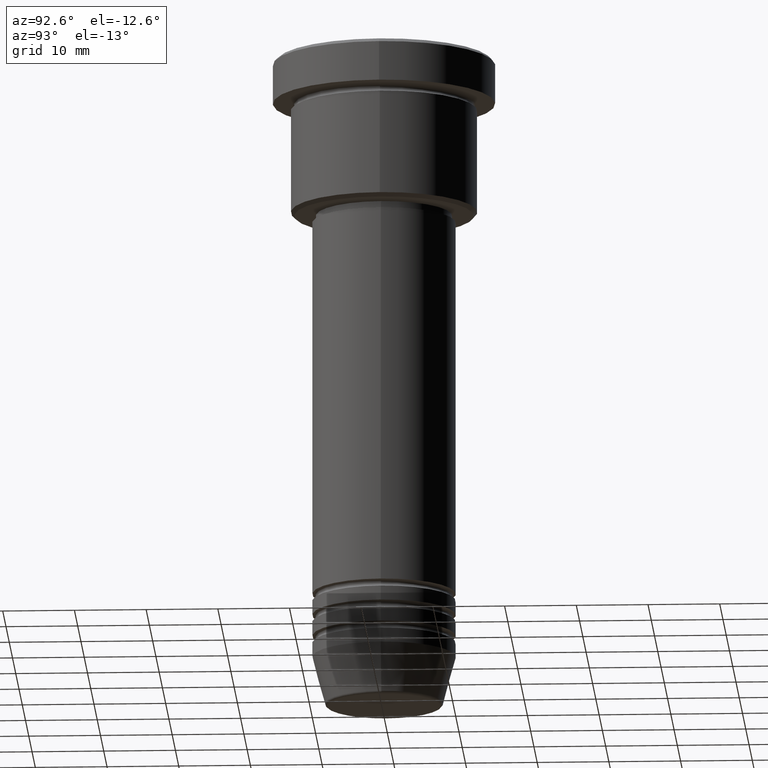
[diagram: clean part render]
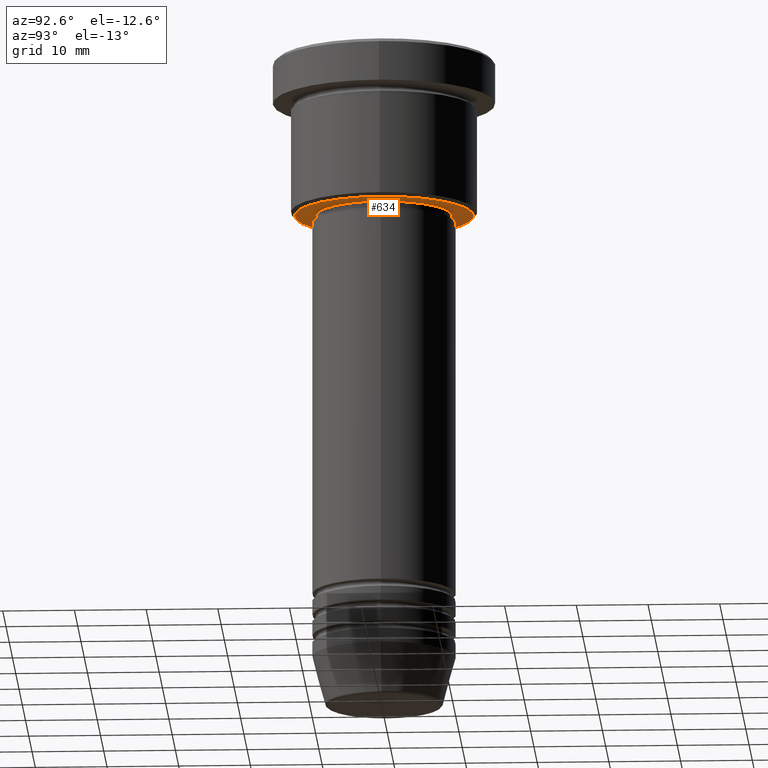
[diagram: same view with one face highlighted and labeled with its STEP entity id]
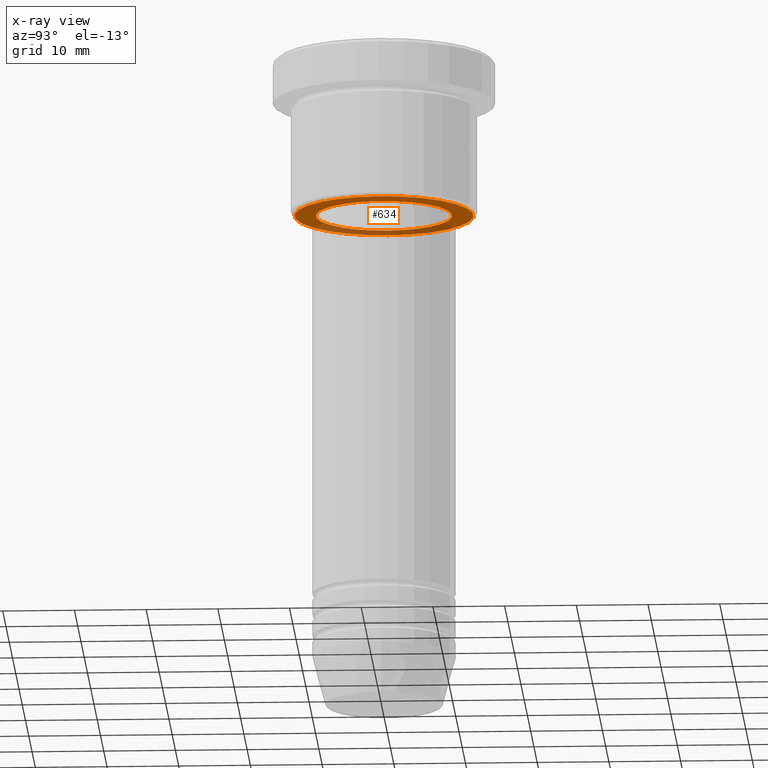
[diagram: x-ray of the same camera — body ghosted, the highlighted face saturated]
A machine part, auxiliary view. The second image highlights one B-rep face of the part: STEP entity #634.
The next image is the same camera in x-ray: the body ghosted, the highlighted face saturated — about 31% of this face is hidden behind the body in this view.
In plain terms, the highlighted planar face has unit normal (0, 0, -1).
Its self-contained STEP definition (entity closure, byte-faithful):
#115 = VERTEX_POINT ( 'NONE', #752 ) ;
#120 = EDGE_CURVE ( 'NONE', #1050, #115, #181, .T. ) ;
#132 = DIRECTION ( 'NONE',  ( -1.000000000000000000, 0.000000000000000000, -0.000000000000000000 ) ) ;
#134 = EDGE_LOOP ( 'NONE', ( #443, #329 ) ) ;
#181 = CIRCLE ( 'NONE', #688, 12.49999999999999645 ) ;
#183 = DIRECTION ( 'NONE',  ( 1.000000000000000000, 0.000000000000000000, 0.000000000000000000 ) ) ;
#194 = CARTESIAN_POINT ( 'NONE',  ( 0.000000000000000000, 0.000000000000000000, -21.99999999999999289 ) ) ;
#221 = AXIS2_PLACEMENT_3D ( 'NONE', #821, #269, #915 ) ;
#248 = CARTESIAN_POINT ( 'NONE',  ( 0.000000000000000000, 0.000000000000000000, -21.99999999999999645 ) ) ;
#269 = DIRECTION ( 'NONE',  ( 0.000000000000000000, 0.000000000000000000, -1.000000000000000000 ) ) ;
#302 = FACE_BOUND ( 'NONE', #134, .T. ) ;
#307 = DIRECTION ( 'NONE',  ( 0.000000000000000000, 0.000000000000000000, -1.000000000000000000 ) ) ;
#311 = CIRCLE ( 'NONE', #1041, 9.500000000000000000 ) ;
#329 = ORIENTED_EDGE ( 'NONE', *, *, #456, .T. ) ;
#423 = CARTESIAN_POINT ( 'NONE',  ( 9.500000000000000000, 0.000000000000000000, -21.99999999999999645 ) ) ;
#443 = ORIENTED_EDGE ( 'NONE', *, *, #1170, .T. ) ;
#456 = EDGE_CURVE ( 'NONE', #528, #820, #650, .T. ) ;
#528 = VERTEX_POINT ( 'NONE', #1085 ) ;
#554 = DIRECTION ( 'NONE',  ( -0.000000000000000000, -0.000000000000000000, 1.000000000000000000 ) ) ;
#564 = DIRECTION ( 'NONE',  ( 0.000000000000000000, 0.000000000000000000, -1.000000000000000000 ) ) ;
#592 = FACE_OUTER_BOUND ( 'NONE', #761, .T. ) ;
#619 = DIRECTION ( 'NONE',  ( -0.000000000000000000, -0.000000000000000000, 1.000000000000000000 ) ) ;
#634 = ADVANCED_FACE ( 'NONE', ( #592, #302 ), #1126, .T. ) ;
#650 = CIRCLE ( 'NONE', #718, 9.500000000000000000 ) ;
#673 = CARTESIAN_POINT ( 'NONE',  ( 0.000000000000000000, 13.00000000000000000, -21.99999999999999289 ) ) ;
#679 = DIRECTION ( 'NONE',  ( -1.000000000000000000, 0.000000000000000000, 0.000000000000000000 ) ) ;
#688 = AXIS2_PLACEMENT_3D ( 'NONE', #194, #564, #679 ) ;
#717 = CARTESIAN_POINT ( 'NONE',  ( 0.000000000000000000, 0.000000000000000000, -21.99999999999999645 ) ) ;
#718 = AXIS2_PLACEMENT_3D ( 'NONE', #717, #554, #183 ) ;
#752 = CARTESIAN_POINT ( 'NONE',  ( -12.49999999999999645, 1.561424668912875111E-15, -21.99999999999999289 ) ) ;
#761 = EDGE_LOOP ( 'NONE', ( #1156, #1083 ) ) ;
#772 = CARTESIAN_POINT ( 'NONE',  ( 12.49999999999999645, 0.000000000000000000, -21.99999999999999289 ) ) ;
#793 = AXIS2_PLACEMENT_3D ( 'NONE', #673, #307, #132 ) ;
#820 = VERTEX_POINT ( 'NONE', #423 ) ;
#821 = CARTESIAN_POINT ( 'NONE',  ( 0.000000000000000000, 0.000000000000000000, -21.99999999999999289 ) ) ;
#873 = EDGE_CURVE ( 'NONE', #115, #1050, #1132, .T. ) ;
#915 = DIRECTION ( 'NONE',  ( -1.000000000000000000, 0.000000000000000000, 0.000000000000000000 ) ) ;
#978 = DIRECTION ( 'NONE',  ( 1.000000000000000000, 0.000000000000000000, 0.000000000000000000 ) ) ;
#1041 = AXIS2_PLACEMENT_3D ( 'NONE', #248, #619, #978 ) ;
#1050 = VERTEX_POINT ( 'NONE', #772 ) ;
#1083 = ORIENTED_EDGE ( 'NONE', *, *, #873, .T. ) ;
#1085 = CARTESIAN_POINT ( 'NONE',  ( -9.500000000000000000, 1.163414459189985485E-15, -21.99999999999999645 ) ) ;
#1126 = PLANE ( 'NONE',  #793 ) ;
#1132 = CIRCLE ( 'NONE', #221, 12.49999999999999645 ) ;
#1156 = ORIENTED_EDGE ( 'NONE', *, *, #120, .T. ) ;
#1170 = EDGE_CURVE ( 'NONE', #820, #528, #311, .T. ) ;